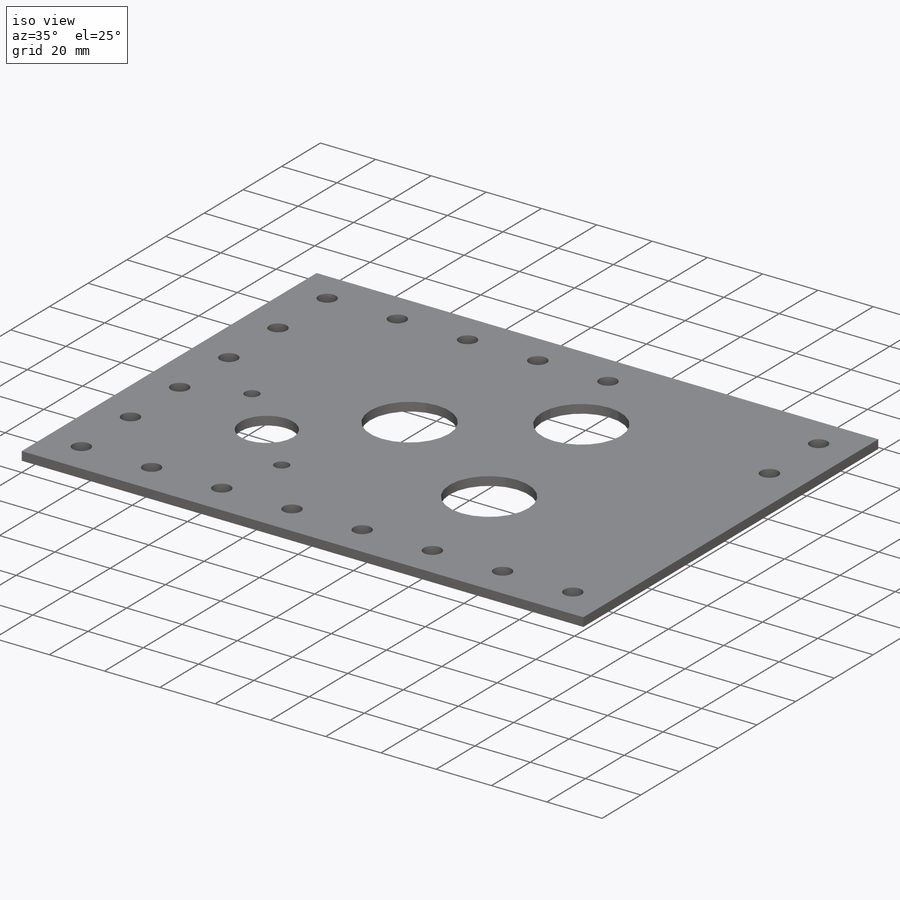
[diagram: iso view]
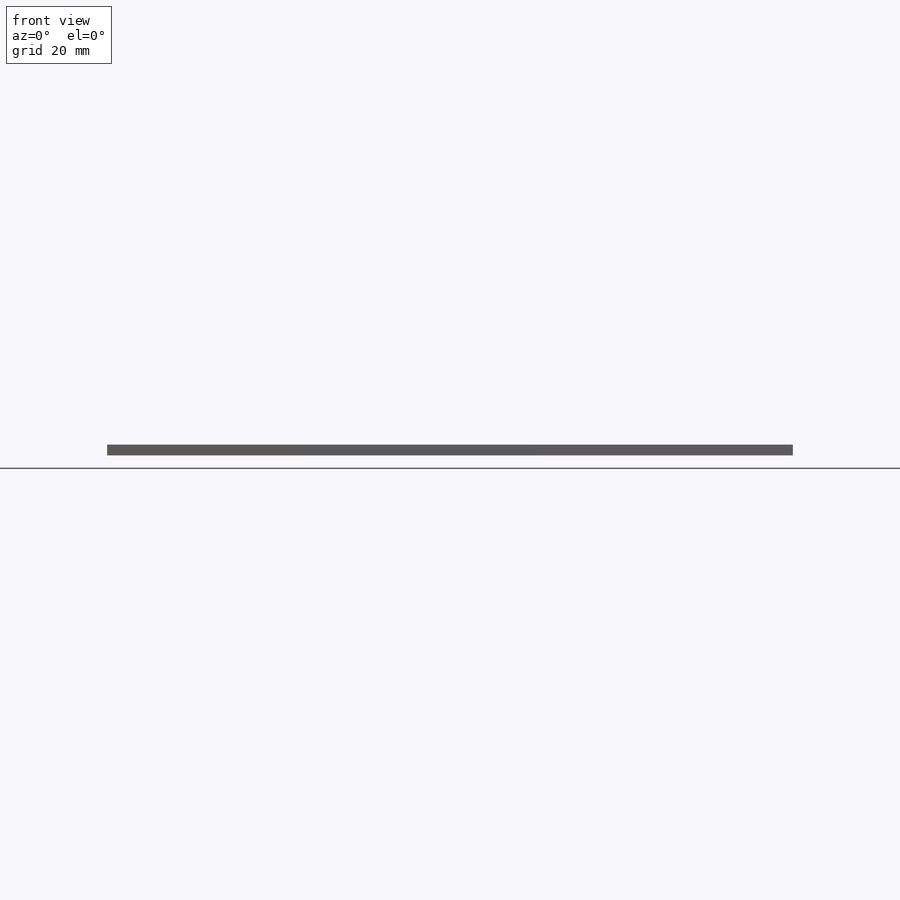
[diagram: front view]
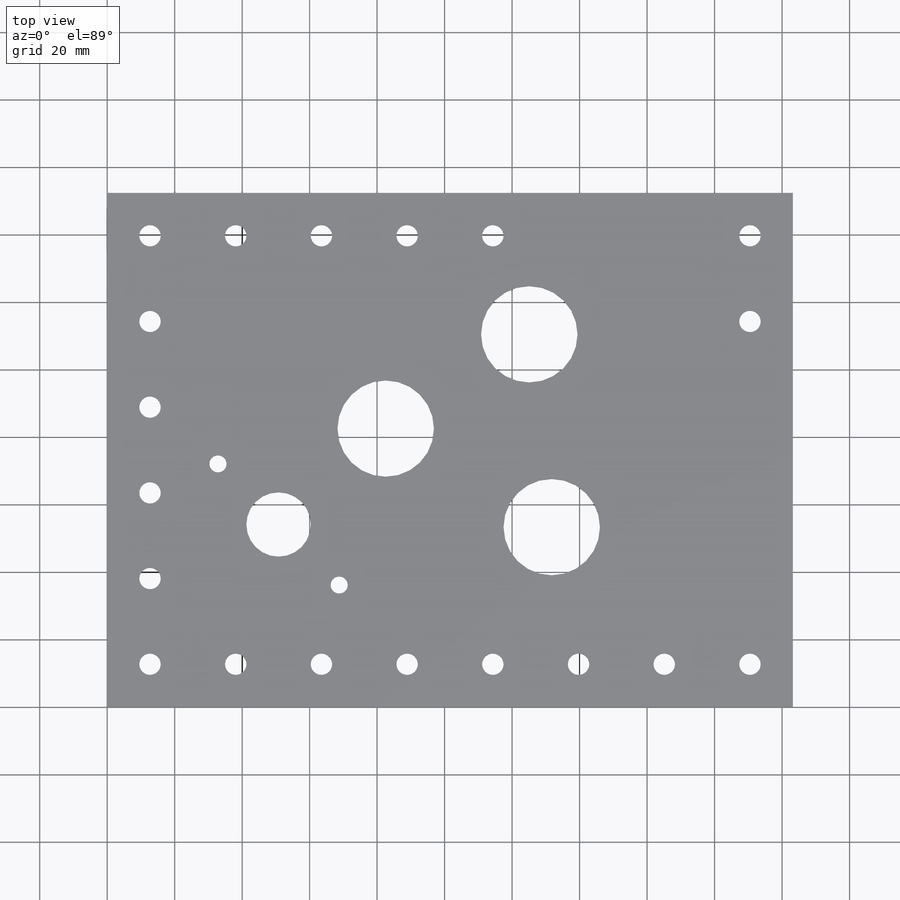
[diagram: top view]
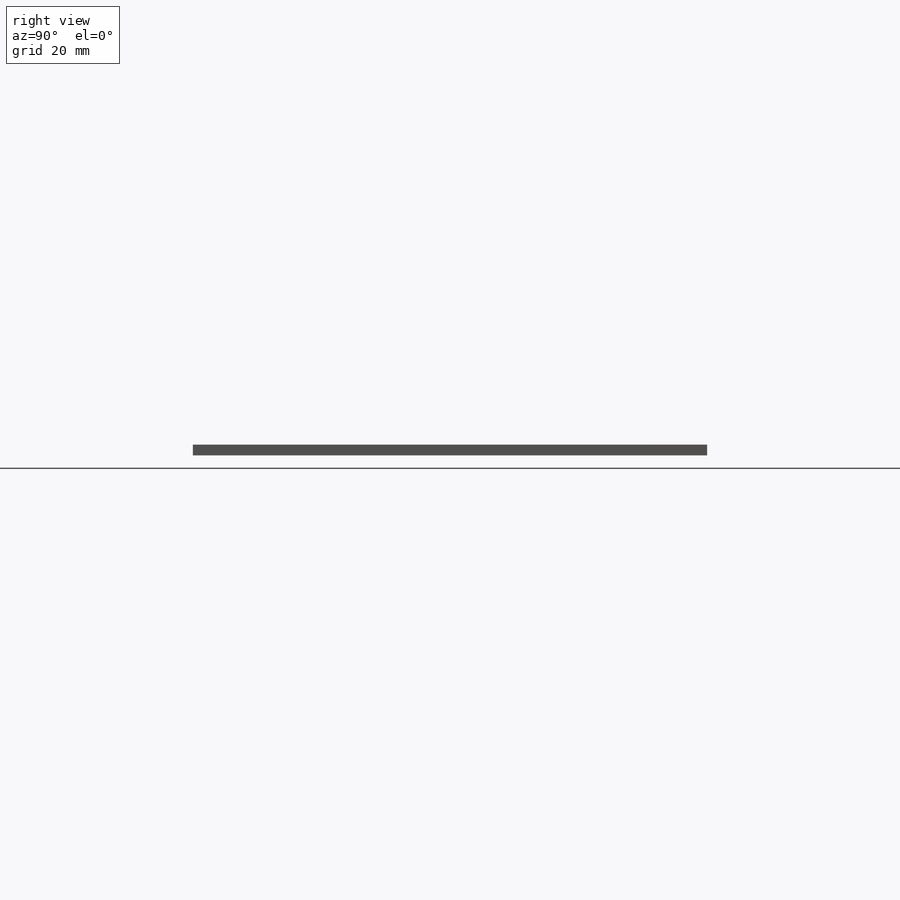
[diagram: right view]
SOLIDWORKS PART (.sldprt)
format: sldprt  version: not decoded by parser v0  size: 463,360 bytes
history: native  units: mm
features: sketch x5, cut_extrude x4, material x1, extrude x1 (+13 scaffold rows collapsed)
feature tree (24):
  scaffold x13  (default folders/planes/origin — collapsed)
  material  "6061 Alloy"
  sketch  "Sketch1"
  extrude  "Boss-Extrude1"  Depth=3.175mm
  sketch  "Sketch4"  dims[c1.D1=~6.346431mm c2.D1=15.0 c2.D2=11.0 c2.D3=10.0 c2.D4=11.0]
  sketch  "Sketch5"  dims[D1=~2.948936mm]
  cut_extrude  "Cut-Extrude4"  Depth=4.7625mm
  sketch  "Sketch6"  dims[D1=25.4mm]
  cut_extrude  "Cut-Extrude5"  Depth=4.7625mm
  sketch  "Sketch7"  dims[D1=6.3754mm]
  cut_extrude  "Cut-Extrude7"  Depth=5.08mm
  cut_extrude  "Cut-Extrude8"  Depth=25.4mm
decode coverage: 9 of 10 modeling features carry decoded parameters
note: ~ marks probable driven/reference dimensions
note: suppression state not decoded; provenance and decode notes live in map.json
